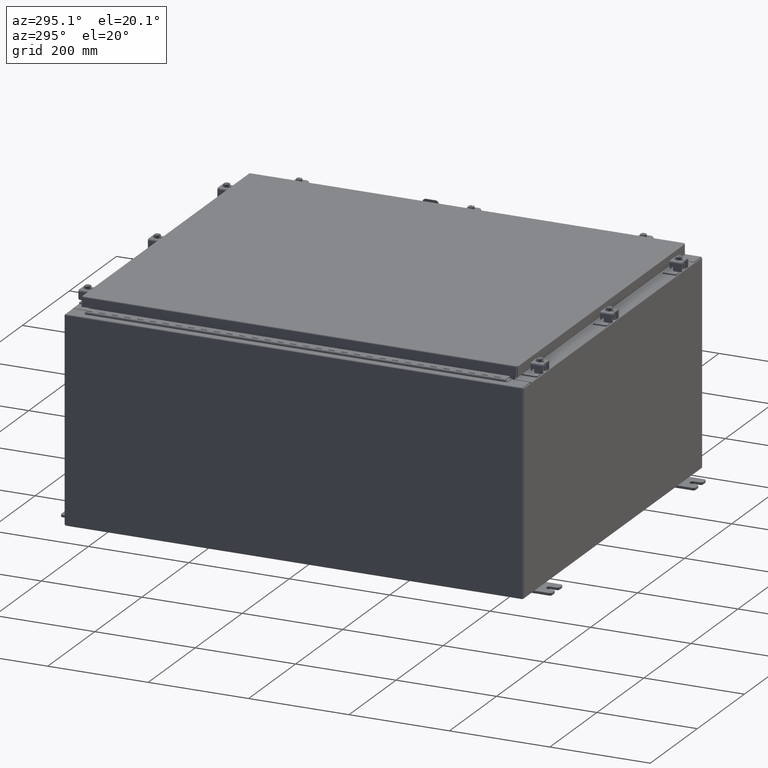
[diagram: clean part render]
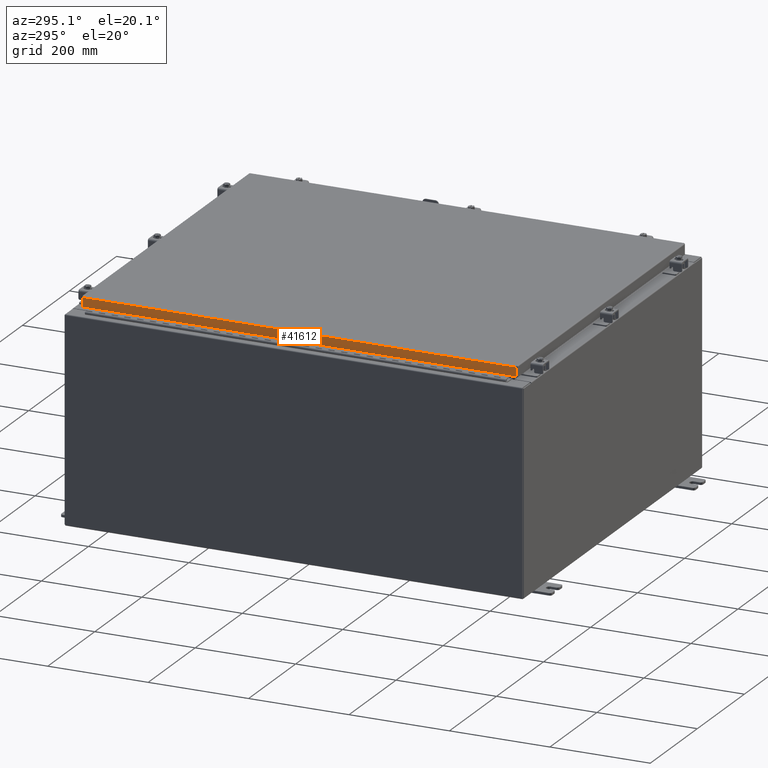
[diagram: same view with one face highlighted and labeled with its STEP entity id]
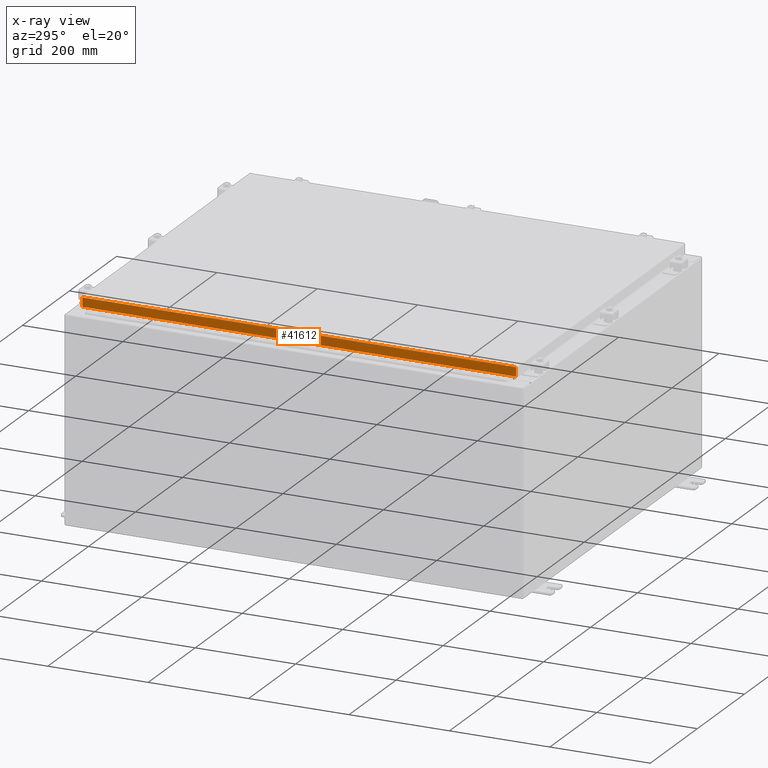
[diagram: x-ray of the same camera — body ghosted, the highlighted face saturated]
A machine part, auxiliary view. The second image highlights one B-rep face of the part: STEP entity #41612.
The next image is the same camera in x-ray: the body ghosted, the highlighted face saturated — about 0% of this face is hidden behind the body in this view.
In plain terms, the highlighted planar face has unit normal (1, 0, -0).
Its self-contained STEP definition (entity closure, byte-faithful):
#2 = EDGE_CURVE ( 'NONE', #9123, #19344, #28922, .T. ) ;
#1703 = EDGE_CURVE ( 'NONE', #8996, #9123, #17139, .T. ) ;
#1718 = ORIENTED_EDGE ( 'NONE', *, *, #2, .F. ) ;
#2658 = DIRECTION ( 'NONE',  ( -3.034122441942816500E-015, 6.982962677686265900E-015, -1.000000000000000000 ) ) ;
#3094 = DIRECTION ( 'NONE',  ( 3.757920914826097400E-031, -1.000000000000000000, -1.107764513432648300E-045 ) ) ;
#8298 = CARTESIAN_POINT ( 'NONE',  ( -14.07800000000000700, 0.0000000000000000000, 4.370956789862821100E-014 ) ) ;
#8996 = VERTEX_POINT ( 'NONE', #43036 ) ;
#9123 = VERTEX_POINT ( 'NONE', #33448 ) ;
#10645 = ORIENTED_EDGE ( 'NONE', *, *, #29996, .F. ) ;
#11546 = VECTOR ( 'NONE', #3094, 39.37007874015748100 ) ;
#17139 = LINE ( 'NONE', #29844, #26151 ) ;
#18486 = DIRECTION ( 'NONE',  ( 1.000000000000000000, 3.757920914826096500E-031, -3.034122441942816500E-015 ) ) ;
#19344 = VERTEX_POINT ( 'NONE', #32389 ) ;
#19368 = DIRECTION ( 'NONE',  ( 4.379057701015054300E-047, 1.000000000000000000, 1.238552822680358400E-016 ) ) ;
#19943 = VECTOR ( 'NONE', #19368, 39.37007874015748100 ) ;
#21127 = ORIENTED_EDGE ( 'NONE', *, *, #1703, .F. ) ;
#23054 = CARTESIAN_POINT ( 'NONE',  ( -14.07800000000000800, -17.09400000000000100, -0.7950000000000007100 ) ) ;
#26044 = VECTOR ( 'NONE', #33902, 39.37007874015748100 ) ;
#26151 = VECTOR ( 'NONE', #2658, 39.37007874015748100 ) ;
#26273 = AXIS2_PLACEMENT_3D ( 'NONE', #8298, #18486, #42106 ) ;
#27083 = LINE ( 'NONE', #27141, #26044 ) ;
#27141 = CARTESIAN_POINT ( 'NONE',  ( -14.07800000000000700, 17.00515786437627200, 1.617254012249243900E-013 ) ) ;
#28922 = LINE ( 'NONE', #23054, #19943 ) ;
#29844 = CARTESIAN_POINT ( 'NONE',  ( -14.07800000000000700, -17.00515786437626900, -0.07470000000000015500 ) ) ;
#29996 = EDGE_CURVE ( 'NONE', #42160, #8996, #37405, .T. ) ;
#31385 = EDGE_LOOP ( 'NONE', ( #10645, #41568, #1718, #21127 ) ) ;
#32389 = CARTESIAN_POINT ( 'NONE',  ( -14.07800000000000800, 17.00515786437627600, -0.7949999999999962700 ) ) ;
#33448 = CARTESIAN_POINT ( 'NONE',  ( -14.07800000000000800, -17.00515786437626500, -0.7950000000000007100 ) ) ;
#33902 = DIRECTION ( 'NONE',  ( -3.034122441942816500E-015, 6.982962677686265900E-015, -1.000000000000000000 ) ) ;
#34983 = CARTESIAN_POINT ( 'NONE',  ( -14.07800000000000700, 17.00515786437627200, -0.08770000000000026400 ) ) ;
#37405 = LINE ( 'NONE', #43537, #11546 ) ;
#38714 = PLANE ( 'NONE',  #26273 ) ;
#40267 = FACE_OUTER_BOUND ( 'NONE', #31385, .T. ) ;
#41568 = ORIENTED_EDGE ( 'NONE', *, *, #42442, .T. ) ;
#41612 = ADVANCED_FACE ( 'NONE', ( #40267 ), #38714, .F. ) ;
#42106 = DIRECTION ( 'NONE',  ( -3.034122441942816500E-015, 0.0000000000000000000, -1.000000000000000000 ) ) ;
#42160 = VERTEX_POINT ( 'NONE', #34983 ) ;
#42442 = EDGE_CURVE ( 'NONE', #42160, #19344, #27083, .T. ) ;
#43036 = CARTESIAN_POINT ( 'NONE',  ( -14.07800000000000700, -17.00515786437626900, -0.08770000000000026400 ) ) ;
#43537 = CARTESIAN_POINT ( 'NONE',  ( -14.07800000000000700, -17.09400000000000100, -0.08770000000000026400 ) ) ;